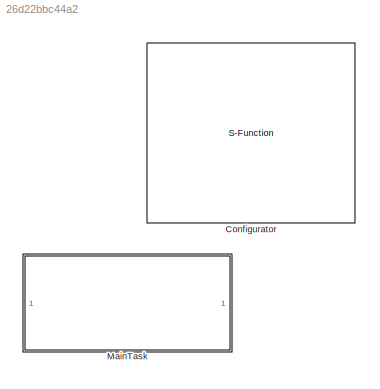
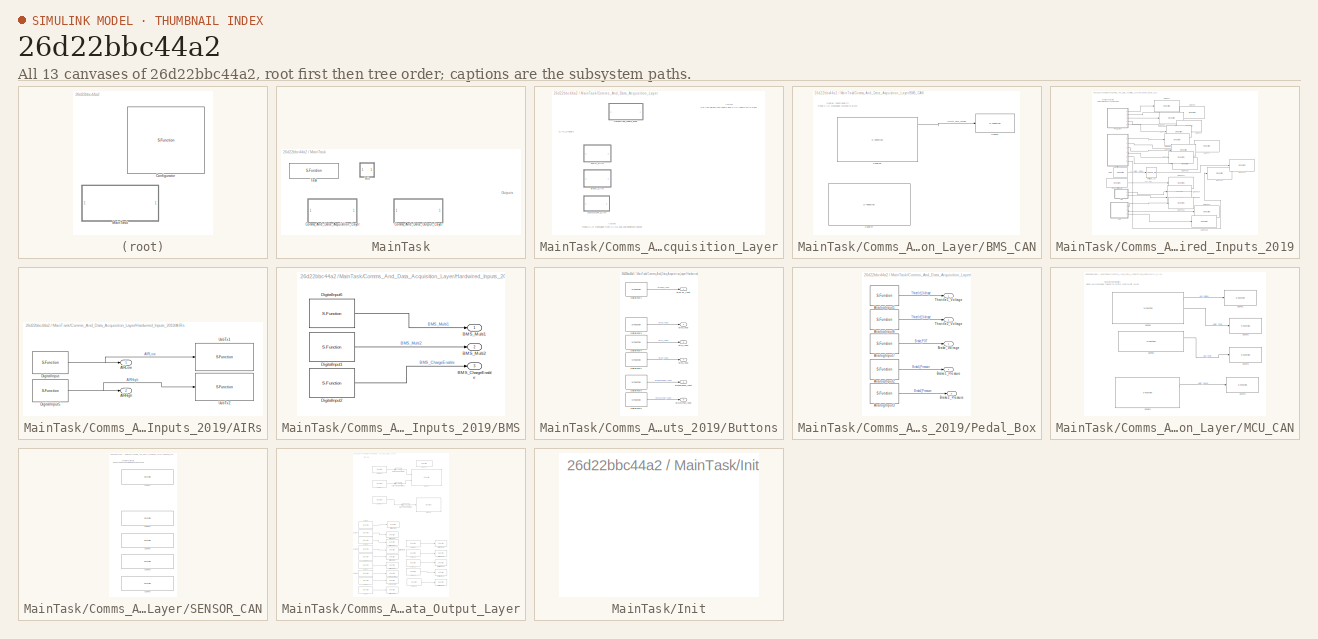
[diagram: thumbnail index - all 13 canvases of the model, root first then tree order]
MODEL slx_26d22bbc44a2
KIND model
CONFIG AbsTol = auto
CONFIG EnableMultiTasking = off
CONFIG FixedStep = 0.0001
CONFIG MaxStep = auto
CONFIG MinStep = auto
CONFIG PostLoadFcn = model_init();
CONFIG RelTol = 1e-3
CONFIG SampleTimeConstraint = Unconstrained
CONFIG Solver = FixedStepDiscrete
CONFIG SolverName = FixedStepDiscrete
CONFIG StartTime = 0.0
CONFIG StopTime = inf
BLOCK [S-Function] Configurator
  EnableBusSupport = off
  FunctionName = NsiSys_Configurator
  OpenFcn = NsiSys_Configurator_OpenFcn();
  Parameters = main,io,nbof_can,can,ccp,flash,nbof_lin,lin,tasks
  Ports = []
  SFcnIsStateOwnerBlock = off
  SFunctionDeploymentMode = off
BLOCK [SubSystem] MainTask
  OpenFcn = NsiSys_SubSystemTask_OpenFcn();
  Ports = []
  RTWFcnName = MainTask
  RTWFcnNameOpts = User specified
  RTWFileName = FileTaskFcn
  RTWFileNameOpts = Use function name
  RTWSystemCode = Nonreusable function
  RequestExecContextInheritance = off
  SystemSampleTime = [0.01]
  TreatAsAtomicUnit = on
  Variant = off
BLOCK [SubSystem] MainTask/Comms_And_Data_Acquisition_Layer
  Ports = []
  RequestExecContextInheritance = off
  Variant = off
BLOCK [SubSystem] MainTask/Comms_And_Data_Acquisition_Layer/BMS_CAN
  Ports = []
  RequestExecContextInheritance = off
  Variant = off
BLOCK [S-Function] MainTask/Comms_And_Data_Acquisition_Layer/BMS_CAN/CanRx6
  EnableBusSupport = off
  FunctionName = NsiCan_Rx_Ext
  OpenFcn = NsiCan_Rx_Ext_OpenFcn();
  Parameters = data_can,channel,msg_name,ident,ident_type,dlc,signals,is_trigger,is_physical,is_canfd,is_rxgw
  Ports = [0, 5]
  SFcnIsStateOwnerBlock = off
  SFunctionDeploymentMode = off
BLOCK [S-Function] MainTask/Comms_And_Data_Acquisition_Layer/BMS_CAN/CanRx7
  EnableBusSupport = off
  FunctionName = NsiCan_Rx_Ext
  OpenFcn = NsiCan_Rx_Ext_OpenFcn();
  Parameters = data_can,channel,msg_name,ident,ident_type,dlc,signals,is_trigger,is_physical,is_canfd,is_rxgw
  Ports = [0, 6]
  SFcnIsStateOwnerBlock = off
  SFunctionDeploymentMode = off
BLOCK [S-Function] MainTask/Comms_And_Data_Acquisition_Layer/BMS_CAN/UsbTx1
  EnableBusSupport = off
  FunctionName = NsiUsb_Tx
  OpenFcn = NsiUsb_Tx_OpenFcn();
  Parameters = signame,resolution,offset,unite
  Ports = [1]
  SFcnIsStateOwnerBlock = off
  SFunctionDeploymentMode = off
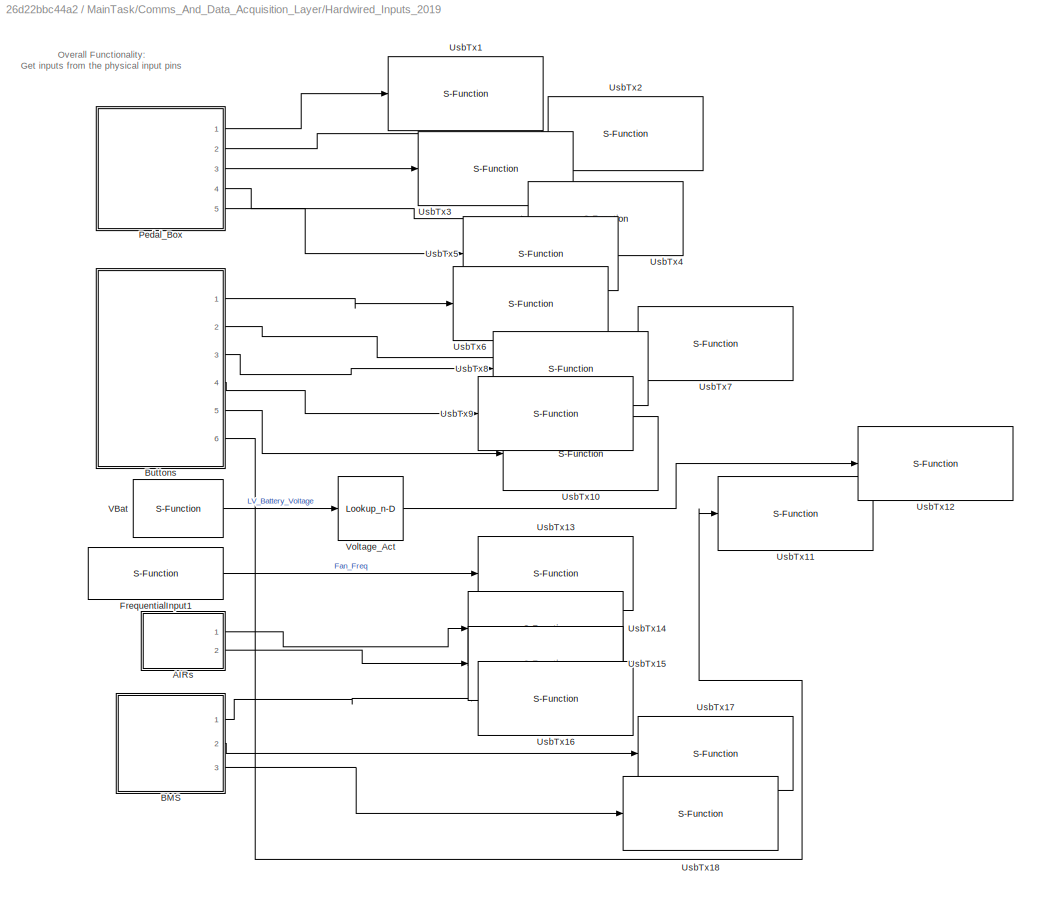
BLOCK [SubSystem] MainTask/Comms_And_Data_Acquisition_Layer/Hardwired_Inputs_2019
  Ports = []
  RequestExecContextInheritance = off
  Variant = off
BLOCK [SubSystem] MainTask/Comms_And_Data_Acquisition_Layer/Hardwired_Inputs_2019/AIRs
  Ports = [0, 2]
  RequestExecContextInheritance = off
  Variant = off
BLOCK [Outport] MainTask/Comms_And_Data_Acquisition_Layer/Hardwired_Inputs_2019/AIRs/AIRHigh
  IconDisplay = Port number
  Port = 2
BLOCK [Outport] MainTask/Comms_And_Data_Acquisition_Layer/Hardwired_Inputs_2019/AIRs/AIRLow
  IconDisplay = Port number
BLOCK [S-Function] MainTask/Comms_And_Data_Acquisition_Layer/Hardwired_Inputs_2019/AIRs/DigitalInput
  EnableBusSupport = off
  FunctionName = NsiIo_DigitalInput
  OpenFcn = NsiIo_DigitalInput_OpenFcn();
  Parameters = channel,is_trigger,typeof_trigger,is_wakeup,wakeup_level
  Ports = [0, 1]
  SFcnIsStateOwnerBlock = off
  SFunctionDeploymentMode = off
BLOCK [S-Function] MainTask/Comms_And_Data_Acquisition_Layer/Hardwired_Inputs_2019/AIRs/DigitalInput5
  EnableBusSupport = off
  FunctionName = NsiIo_DigitalInput
  OpenFcn = NsiIo_DigitalInput_OpenFcn();
  Parameters = channel,is_trigger,typeof_trigger,is_wakeup,wakeup_level
  Ports = [0, 1]
  SFcnIsStateOwnerBlock = off
  SFunctionDeploymentMode = off
BLOCK [S-Function] MainTask/Comms_And_Data_Acquisition_Layer/Hardwired_Inputs_2019/AIRs/UsbTx1
  EnableBusSupport = off
  FunctionName = NsiUsb_Tx
  OpenFcn = NsiUsb_Tx_OpenFcn();
  Parameters = signame,resolution,offset,unite
  Ports = [1]
  SFcnIsStateOwnerBlock = off
  SFunctionDeploymentMode = off
BLOCK [S-Function] MainTask/Comms_And_Data_Acquisition_Layer/Hardwired_Inputs_2019/AIRs/UsbTx2
  EnableBusSupport = off
  FunctionName = NsiUsb_Tx
  OpenFcn = NsiUsb_Tx_OpenFcn();
  Parameters = signame,resolution,offset,unite
  Ports = [1]
  SFcnIsStateOwnerBlock = off
  SFunctionDeploymentMode = off
BLOCK [SubSystem] MainTask/Comms_And_Data_Acquisition_Layer/Hardwired_Inputs_2019/BMS
  Ports = [0, 3]
  RequestExecContextInheritance = off
  Variant = off
BLOCK [Outport] MainTask/Comms_And_Data_Acquisition_Layer/Hardwired_Inputs_2019/BMS/BMS_ChargeEnable
  IconDisplay = Port number
  Port = 3
BLOCK [Outport] MainTask/Comms_And_Data_Acquisition_Layer/Hardwired_Inputs_2019/BMS/BMS_Multi1
  IconDisplay = Port number
BLOCK [Outport] MainTask/Comms_And_Data_Acquisition_Layer/Hardwired_Inputs_2019/BMS/BMS_Multi2
  IconDisplay = Port number
  Port = 2
BLOCK [S-Function] MainTask/Comms_And_Data_Acquisition_Layer/Hardwired_Inputs_2019/BMS/DigitalInput1
  EnableBusSupport = off
  FunctionName = NsiIo_DigitalInput
  OpenFcn = NsiIo_DigitalInput_OpenFcn();
  Parameters = channel,is_trigger,typeof_trigger,is_wakeup,wakeup_level
  Ports = [0, 1]
  SFcnIsStateOwnerBlock = off
  SFunctionDeploymentMode = off
BLOCK [S-Function] MainTask/Comms_And_Data_Acquisition_Layer/Hardwired_Inputs_2019/BMS/DigitalInput2
  EnableBusSupport = off
  FunctionName = NsiIo_DigitalInput
  OpenFcn = NsiIo_DigitalInput_OpenFcn();
  Parameters = channel,is_trigger,typeof_trigger,is_wakeup,wakeup_level
  Ports = [0, 1]
  SFcnIsStateOwnerBlock = off
  SFunctionDeploymentMode = off
BLOCK [S-Function] MainTask/Comms_And_Data_Acquisition_Layer/Hardwired_Inputs_2019/BMS/DigitalInput6
  EnableBusSupport = off
  FunctionName = NsiIo_DigitalInput
  OpenFcn = NsiIo_DigitalInput_OpenFcn();
  Parameters = channel,is_trigger,typeof_trigger,is_wakeup,wakeup_level
  Ports = [0, 1]
  SFcnIsStateOwnerBlock = off
  SFunctionDeploymentMode = off
BLOCK [SubSystem] MainTask/Comms_And_Data_Acquisition_Layer/Hardwired_Inputs_2019/Buttons
  Ports = [0, 6]
  RequestExecContextInheritance = off
  Variant = off
BLOCK [S-Function] MainTask/Comms_And_Data_Acquisition_Layer/Hardwired_Inputs_2019/Buttons/DigitalInput1
  EnableBusSupport = off
  FunctionName = NsiIo_DigitalInput
  OpenFcn = NsiIo_DigitalInput_OpenFcn();
  Parameters = channel,is_trigger,typeof_trigger,is_wakeup,wakeup_level
  Ports = [0, 1]
  SFcnIsStateOwnerBlock = off
  SFunctionDeploymentMode = off
BLOCK [S-Function] MainTask/Comms_And_Data_Acquisition_Layer/Hardwired_Inputs_2019/Buttons/DigitalInput2
  EnableBusSupport = off
  FunctionName = NsiIo_DigitalInput
  OpenFcn = NsiIo_DigitalInput_OpenFcn();
  Parameters = channel,is_trigger,typeof_trigger,is_wakeup,wakeup_level
  Ports = [0, 1]
  SFcnIsStateOwnerBlock = off
  SFunctionDeploymentMode = off
BLOCK [S-Function] MainTask/Comms_And_Data_Acquisition_Layer/Hardwired_Inputs_2019/Buttons/DigitalInput3
  EnableBusSupport = off
  FunctionName = NsiIo_DigitalInput
  OpenFcn = NsiIo_DigitalInput_OpenFcn();
  Parameters = channel,is_trigger,typeof_trigger,is_wakeup,wakeup_level
  Ports = [0, 1]
  SFcnIsStateOwnerBlock = off
  SFunctionDeploymentMode = off
BLOCK [S-Function] MainTask/Comms_And_Data_Acquisition_Layer/Hardwired_Inputs_2019/Buttons/DigitalInput4
  EnableBusSupport = off
  FunctionName = NsiIo_DigitalInput
  OpenFcn = NsiIo_DigitalInput_OpenFcn();
  Parameters = channel,is_trigger,typeof_trigger,is_wakeup,wakeup_level
  Ports = [0, 1]
  SFcnIsStateOwnerBlock = off
  SFunctionDeploymentMode = off
BLOCK [S-Function] MainTask/Comms_And_Data_Acquisition_Layer/Hardwired_Inputs_2019/Buttons/DigitalInput5
  EnableBusSupport = off
  FunctionName = NsiIo_DigitalInput
  OpenFcn = NsiIo_DigitalInput_OpenFcn();
  Parameters = channel,is_trigger,typeof_trigger,is_wakeup,wakeup_level
  Ports = [0, 1]
  SFcnIsStateOwnerBlock = off
  SFunctionDeploymentMode = off
BLOCK [S-Function] MainTask/Comms_And_Data_Acquisition_Layer/Hardwired_Inputs_2019/Buttons/DigitalInput6
  EnableBusSupport = off
  FunctionName = NsiIo_DigitalInput
  OpenFcn = NsiIo_DigitalInput_OpenFcn();
  Parameters = channel,is_trigger,typeof_trigger,is_wakeup,wakeup_level
  Ports = [0, 1]
  SFcnIsStateOwnerBlock = off
  SFunctionDeploymentMode = off
BLOCK [Outport] MainTask/Comms_And_Data_Acquisition_Layer/Hardwired_Inputs_2019/Buttons/btnAccyFan_Input
  IconDisplay = Port number
  Port = 6
BLOCK [Outport] MainTask/Comms_And_Data_Acquisition_Layer/Hardwired_Inputs_2019/Buttons/btnPumpFan_Input
  IconDisplay = Port number
  Port = 5
BLOCK [Outport] MainTask/Comms_And_Data_Acquisition_Layer/Hardwired_Inputs_2019/Buttons/btnRTD_Input
  IconDisplay = Port number
BLOCK [Outport] MainTask/Comms_And_Data_Acquisition_Layer/Hardwired_Inputs_2019/Buttons/btnX_Input
  IconDisplay = Port number
  Port = 2
BLOCK [Outport] MainTask/Comms_And_Data_Acquisition_Layer/Hardwired_Inputs_2019/Buttons/btnY_Input
  IconDisplay = Port number
  Port = 3
BLOCK [Outport] MainTask/Comms_And_Data_Acquisition_Layer/Hardwired_Inputs_2019/Buttons/btnZ_Input
  IconDisplay = Port number
  Port = 4
BLOCK [S-Function] MainTask/Comms_And_Data_Acquisition_Layer/Hardwired_Inputs_2019/FrequentialInput1
  EnableBusSupport = off
  FunctionName = NsiIo_FrequencyInput
  OpenFcn = NsiIo_FrequencyInput_OpenFcn();
  Parameters = channel,max_freq,is_digital_input,DutyCycle,MUXlabType
  Ports = [0, 1]
  SFcnIsStateOwnerBlock = off
  SFunctionDeploymentMode = off
BLOCK [SubSystem] MainTask/Comms_And_Data_Acquisition_Layer/Hardwired_Inputs_2019/Pedal_Box
  Ports = [0, 5]
  RequestExecContextInheritance = off
  Variant = off
BLOCK [S-Function] MainTask/Comms_And_Data_Acquisition_Layer/Hardwired_Inputs_2019/Pedal_Box/AnalogInput1
  EnableBusSupport = off
  FunctionName = NsiIo_AnalogInput
  OpenFcn = NsiIo_AnalogInput_OpenFcn();
  Parameters = channel
  Ports = [0, 1]
  SFcnIsStateOwnerBlock = off
  SFunctionDeploymentMode = off
BLOCK [S-Function] MainTask/Comms_And_Data_Acquisition_Layer/Hardwired_Inputs_2019/Pedal_Box/AnalogInput2
  EnableBusSupport = off
  FunctionName = NsiIo_AnalogInput
  OpenFcn = NsiIo_AnalogInput_OpenFcn();
  Parameters = channel
  Ports = [0, 1]
  SFcnIsStateOwnerBlock = off
  SFunctionDeploymentMode = off
BLOCK [S-Function] MainTask/Comms_And_Data_Acquisition_Layer/Hardwired_Inputs_2019/Pedal_Box/AnalogInput3
  EnableBusSupport = off
  FunctionName = NsiIo_AnalogInput
  OpenFcn = NsiIo_AnalogInput_OpenFcn();
  Parameters = channel
  Ports = [0, 1]
  SFcnIsStateOwnerBlock = off
  SFunctionDeploymentMode = off
BLOCK [S-Function] MainTask/Comms_And_Data_Acquisition_Layer/Hardwired_Inputs_2019/Pedal_Box/AnalogInput6
  EnableBusSupport = off
  FunctionName = NsiIo_AnalogInput
  OpenFcn = NsiIo_AnalogInput_OpenFcn();
  Parameters = channel
  Ports = [0, 1]
  SFcnIsStateOwnerBlock = off
  SFunctionDeploymentMode = off
BLOCK [S-Function] MainTask/Comms_And_Data_Acquisition_Layer/Hardwired_Inputs_2019/Pedal_Box/AnalogInput7
  EnableBusSupport = off
  FunctionName = NsiIo_AnalogInput
  OpenFcn = NsiIo_AnalogInput_OpenFcn();
  Parameters = channel
  Ports = [0, 1]
  SFcnIsStateOwnerBlock = off
  SFunctionDeploymentMode = off
BLOCK [Outport] MainTask/Comms_And_Data_Acquisition_Layer/Hardwired_Inputs_2019/Pedal_Box/Brake1_Pressure
  IconDisplay = Port number
  Port = 4
BLOCK [Outport] MainTask/Comms_And_Data_Acquisition_Layer/Hardwired_Inputs_2019/Pedal_Box/Brake2_Pressure
  IconDisplay = Port number
  Port = 5
BLOCK [Outport] MainTask/Comms_And_Data_Acquisition_Layer/Hardwired_Inputs_2019/Pedal_Box/Brake_Voltage
  IconDisplay = Port number
  Port = 3
BLOCK [Outport] MainTask/Comms_And_Data_Acquisition_Layer/Hardwired_Inputs_2019/Pedal_Box/Throttle1_Voltage
  IconDisplay = Port number
BLOCK [Outport] MainTask/Comms_And_Data_Acquisition_Layer/Hardwired_Inputs_2019/Pedal_Box/Throttle2_Voltage
  IconDisplay = Port number
  Port = 2
BLOCK [S-Function] MainTask/Comms_And_Data_Acquisition_Layer/Hardwired_Inputs_2019/UsbTx1
  EnableBusSupport = off
  FunctionName = NsiUsb_Tx
  OpenFcn = NsiUsb_Tx_OpenFcn();
  Parameters = signame,resolution,offset,unite
  Ports = [1]
  SFcnIsStateOwnerBlock = off
  SFunctionDeploymentMode = off
BLOCK [S-Function] MainTask/Comms_And_Data_Acquisition_Layer/Hardwired_Inputs_2019/UsbTx10
  EnableBusSupport = off
  FunctionName = NsiUsb_Tx
  OpenFcn = NsiUsb_Tx_OpenFcn();
  Parameters = signame,resolution,offset,unite
  Ports = [1]
  SFcnIsStateOwnerBlock = off
  SFunctionDeploymentMode = off
BLOCK [S-Function] MainTask/Comms_And_Data_Acquisition_Layer/Hardwired_Inputs_2019/UsbTx11
  EnableBusSupport = off
  FunctionName = NsiUsb_Tx
  OpenFcn = NsiUsb_Tx_OpenFcn();
  Parameters = signame,resolution,offset,unite
  Ports = [1]
  SFcnIsStateOwnerBlock = off
  SFunctionDeploymentMode = off
BLOCK [S-Function] MainTask/Comms_And_Data_Acquisition_Layer/Hardwired_Inputs_2019/UsbTx12
  EnableBusSupport = off
  FunctionName = NsiUsb_Tx
  OpenFcn = NsiUsb_Tx_OpenFcn();
  Parameters = signame,resolution,offset,unite
  Ports = [1]
  SFcnIsStateOwnerBlock = off
  SFunctionDeploymentMode = off
BLOCK [S-Function] MainTask/Comms_And_Data_Acquisition_Layer/Hardwired_Inputs_2019/UsbTx13
  EnableBusSupport = off
  FunctionName = NsiUsb_Tx
  OpenFcn = NsiUsb_Tx_OpenFcn();
  Parameters = signame,resolution,offset,unite
  Ports = [1]
  SFcnIsStateOwnerBlock = off
  SFunctionDeploymentMode = off
BLOCK [S-Function] MainTask/Comms_And_Data_Acquisition_Layer/Hardwired_Inputs_2019/UsbTx14
  EnableBusSupport = off
  FunctionName = NsiUsb_Tx
  OpenFcn = NsiUsb_Tx_OpenFcn();
  Parameters = signame,resolution,offset,unite
  Ports = [1]
  SFcnIsStateOwnerBlock = off
  SFunctionDeploymentMode = off
BLOCK [S-Function] MainTask/Comms_And_Data_Acquisition_Layer/Hardwired_Inputs_2019/UsbTx15
  EnableBusSupport = off
  FunctionName = NsiUsb_Tx
  OpenFcn = NsiUsb_Tx_OpenFcn();
  Parameters = signame,resolution,offset,unite
  Ports = [1]
  SFcnIsStateOwnerBlock = off
  SFunctionDeploymentMode = off
BLOCK [S-Function] MainTask/Comms_And_Data_Acquisition_Layer/Hardwired_Inputs_2019/UsbTx16
  EnableBusSupport = off
  FunctionName = NsiUsb_Tx
  OpenFcn = NsiUsb_Tx_OpenFcn();
  Parameters = signame,resolution,offset,unite
  Ports = [1]
  SFcnIsStateOwnerBlock = off
  SFunctionDeploymentMode = off
BLOCK [S-Function] MainTask/Comms_And_Data_Acquisition_Layer/Hardwired_Inputs_2019/UsbTx17
  EnableBusSupport = off
  FunctionName = NsiUsb_Tx
  OpenFcn = NsiUsb_Tx_OpenFcn();
  Parameters = signame,resolution,offset,unite
  Ports = [1]
  SFcnIsStateOwnerBlock = off
  SFunctionDeploymentMode = off
BLOCK [S-Function] MainTask/Comms_And_Data_Acquisition_Layer/Hardwired_Inputs_2019/UsbTx18
  EnableBusSupport = off
  FunctionName = NsiUsb_Tx
  OpenFcn = NsiUsb_Tx_OpenFcn();
  Parameters = signame,resolution,offset,unite
  Ports = [1]
  SFcnIsStateOwnerBlock = off
  SFunctionDeploymentMode = off
BLOCK [S-Function] MainTask/Comms_And_Data_Acquisition_Layer/Hardwired_Inputs_2019/UsbTx2
  EnableBusSupport = off
  FunctionName = NsiUsb_Tx
  OpenFcn = NsiUsb_Tx_OpenFcn();
  Parameters = signame,resolution,offset,unite
  Ports = [1]
  SFcnIsStateOwnerBlock = off
  SFunctionDeploymentMode = off
BLOCK [S-Function] MainTask/Comms_And_Data_Acquisition_Layer/Hardwired_Inputs_2019/UsbTx3
  EnableBusSupport = off
  FunctionName = NsiUsb_Tx
  OpenFcn = NsiUsb_Tx_OpenFcn();
  Parameters = signame,resolution,offset,unite
  Ports = [1]
  SFcnIsStateOwnerBlock = off
  SFunctionDeploymentMode = off
BLOCK [S-Function] MainTask/Comms_And_Data_Acquisition_Layer/Hardwired_Inputs_2019/UsbTx4
  EnableBusSupport = off
  FunctionName = NsiUsb_Tx
  OpenFcn = NsiUsb_Tx_OpenFcn();
  Parameters = signame,resolution,offset,unite
  Ports = [1]
  SFcnIsStateOwnerBlock = off
  SFunctionDeploymentMode = off
BLOCK [S-Function] MainTask/Comms_And_Data_Acquisition_Layer/Hardwired_Inputs_2019/UsbTx5
  EnableBusSupport = off
  FunctionName = NsiUsb_Tx
  OpenFcn = NsiUsb_Tx_OpenFcn();
  Parameters = signame,resolution,offset,unite
  Ports = [1]
  SFcnIsStateOwnerBlock = off
  SFunctionDeploymentMode = off
BLOCK [S-Function] MainTask/Comms_And_Data_Acquisition_Layer/Hardwired_Inputs_2019/UsbTx6
  EnableBusSupport = off
  FunctionName = NsiUsb_Tx
  OpenFcn = NsiUsb_Tx_OpenFcn();
  Parameters = signame,resolution,offset,unite
  Ports = [1]
  SFcnIsStateOwnerBlock = off
  SFunctionDeploymentMode = off
BLOCK [S-Function] MainTask/Comms_And_Data_Acquisition_Layer/Hardwired_Inputs_2019/UsbTx7
  EnableBusSupport = off
  FunctionName = NsiUsb_Tx
  OpenFcn = NsiUsb_Tx_OpenFcn();
  Parameters = signame,resolution,offset,unite
  Ports = [1]
  SFcnIsStateOwnerBlock = off
  SFunctionDeploymentMode = off
BLOCK [S-Function] MainTask/Comms_And_Data_Acquisition_Layer/Hardwired_Inputs_2019/UsbTx8
  EnableBusSupport = off
  FunctionName = NsiUsb_Tx
  OpenFcn = NsiUsb_Tx_OpenFcn();
  Parameters = signame,resolution,offset,unite
  Ports = [1]
  SFcnIsStateOwnerBlock = off
  SFunctionDeploymentMode = off
BLOCK [S-Function] MainTask/Comms_And_Data_Acquisition_Layer/Hardwired_Inputs_2019/UsbTx9
  EnableBusSupport = off
  FunctionName = NsiUsb_Tx
  OpenFcn = NsiUsb_Tx_OpenFcn();
  Parameters = signame,resolution,offset,unite
  Ports = [1]
  SFcnIsStateOwnerBlock = off
  SFunctionDeploymentMode = off
BLOCK [S-Function] MainTask/Comms_And_Data_Acquisition_Layer/Hardwired_Inputs_2019/VBat
  EnableBusSupport = off
  FunctionName = NsiIo_Vbat
  OpenFcn = NsiIo_Vbat_OpenFcn();
  Ports = [0, 1]
  SFcnIsStateOwnerBlock = off
  SFunctionDeploymentMode = off
BLOCK [Lookup_n-D] MainTask/Comms_And_Data_Acquisition_Layer/Hardwired_Inputs_2019/Voltage_Act
  BreakpointsForDimension1 = [0,20000]
  ExtrapMethod = Clip
  InternalRulePriority = Speed
  NumberOfTableDimensions = 1
  OutDataTypeStr = uint16
  Ports = [1, 1]
  RndMeth = Simplest
  Table = [500,33000]
  TableDataTypeStr = Inherit: Inherit from 'Table data'
  UseLastTableValue = on
BLOCK [SubSystem] MainTask/Comms_And_Data_Acquisition_Layer/MCU_CAN
  Ports = []
  RequestExecContextInheritance = off
  Variant = off
BLOCK [S-Function] MainTask/Comms_And_Data_Acquisition_Layer/MCU_CAN/CanRx1
  EnableBusSupport = off
  FunctionName = NsiCan_Rx_J1939_Ext
  OpenFcn = NsiCan_Rx_J1939_Ext_OpenFcn();
  Parameters = data_can,channel,msg_name,ident,ident_type,dlc,signals,is_trigger,is_SA_Masked,is_TA_Masked,is_physical,is_canfd
  Ports = [0, 3]
  SFcnIsStateOwnerBlock = off
  SFunctionDeploymentMode = off
BLOCK [S-Function] MainTask/Comms_And_Data_Acquisition_Layer/MCU_CAN/CanRx2
  EnableBusSupport = off
  FunctionName = NsiCan_Rx_J1939_Ext
  OpenFcn = NsiCan_Rx_J1939_Ext_OpenFcn();
  Parameters = data_can,channel,msg_name,ident,ident_type,dlc,signals,is_trigger,is_SA_Masked,is_TA_Masked,is_physical,is_canfd
  Ports = [0, 2]
  SFcnIsStateOwnerBlock = off
  SFunctionDeploymentMode = off
BLOCK [S-Function] MainTask/Comms_And_Data_Acquisition_Layer/MCU_CAN/CanRx3
  EnableBusSupport = off
  FunctionName = NsiCan_Rx_J1939_Ext
  OpenFcn = NsiCan_Rx_J1939_Ext_OpenFcn();
  Parameters = data_can,channel,msg_name,ident,ident_type,dlc,signals,is_trigger,is_SA_Masked,is_TA_Masked,is_physical,is_canfd
  Ports = [0, 2]
  SFcnIsStateOwnerBlock = off
  SFunctionDeploymentMode = off
BLOCK [S-Function] MainTask/Comms_And_Data_Acquisition_Layer/MCU_CAN/UsbTx1
  EnableBusSupport = off
  FunctionName = NsiUsb_Tx
  OpenFcn = NsiUsb_Tx_OpenFcn();
  Parameters = signame,resolution,offset,unite
  Ports = [1]
  SFcnIsStateOwnerBlock = off
  SFunctionDeploymentMode = off
BLOCK [S-Function] MainTask/Comms_And_Data_Acquisition_Layer/MCU_CAN/UsbTx2
  EnableBusSupport = off
  FunctionName = NsiUsb_Tx
  OpenFcn = NsiUsb_Tx_OpenFcn();
  Parameters = signame,resolution,offset,unite
  Ports = [1]
  SFcnIsStateOwnerBlock = off
  SFunctionDeploymentMode = off
BLOCK [S-Function] MainTask/Comms_And_Data_Acquisition_Layer/MCU_CAN/UsbTx3
  EnableBusSupport = off
  FunctionName = NsiUsb_Tx
  OpenFcn = NsiUsb_Tx_OpenFcn();
  Parameters = signame,resolution,offset,unite
  Ports = [1]
  SFcnIsStateOwnerBlock = off
  SFunctionDeploymentMode = off
BLOCK [S-Function] MainTask/Comms_And_Data_Acquisition_Layer/MCU_CAN/UsbTx4
  EnableBusSupport = off
  FunctionName = NsiUsb_Tx
  OpenFcn = NsiUsb_Tx_OpenFcn();
  Parameters = signame,resolution,offset,unite
  Ports = [1]
  SFcnIsStateOwnerBlock = off
  SFunctionDeploymentMode = off
BLOCK [SubSystem] MainTask/Comms_And_Data_Acquisition_Layer/SENSOR_CAN
  Ports = []
  RequestExecContextInheritance = off
  Variant = off
BLOCK [S-Function] MainTask/Comms_And_Data_Acquisition_Layer/SENSOR_CAN/CanRx1
  EnableBusSupport = off
  FunctionName = NsiCan_Rx_Ext
  OpenFcn = NsiCan_Rx_Ext_OpenFcn();
  Parameters = data_can,channel,msg_name,ident,ident_type,dlc,signals,is_trigger,is_physical,is_canfd,is_rxgw
  Ports = [0, 4]
  SFcnIsStateOwnerBlock = off
  SFunctionDeploymentMode = off
BLOCK [S-Function] MainTask/Comms_And_Data_Acquisition_Layer/SENSOR_CAN/CanRx2
  EnableBusSupport = off
  FunctionName = NsiCan_Rx_Ext
  OpenFcn = NsiCan_Rx_Ext_OpenFcn();
  Parameters = data_can,channel,msg_name,ident,ident_type,dlc,signals,is_trigger,is_physical,is_canfd,is_rxgw
  Ports = [0, 4]
  SFcnIsStateOwnerBlock = off
  SFunctionDeploymentMode = off
BLOCK [S-Function] MainTask/Comms_And_Data_Acquisition_Layer/SENSOR_CAN/CanRx5
  EnableBusSupport = off
  FunctionName = NsiCan_Rx_Ext
  OpenFcn = NsiCan_Rx_Ext_OpenFcn();
  Parameters = data_can,channel,msg_name,ident,ident_type,dlc,signals,is_trigger,is_physical,is_canfd,is_rxgw
  Ports = [0, 2]
  SFcnIsStateOwnerBlock = off
  SFunctionDeploymentMode = off
BLOCK [S-Function] MainTask/Comms_And_Data_Acquisition_Layer/SENSOR_CAN/CanRx8
  EnableBusSupport = off
  FunctionName = NsiCan_Rx_Ext
  OpenFcn = NsiCan_Rx_Ext_OpenFcn();
  Parameters = data_can,channel,msg_name,ident,ident_type,dlc,signals,is_trigger,is_physical,is_canfd,is_rxgw
  Ports = [0, 2]
  SFcnIsStateOwnerBlock = off
  SFunctionDeploymentMode = off
BLOCK [S-Function] MainTask/Comms_And_Data_Acquisition_Layer/SENSOR_CAN/CanRx9
  EnableBusSupport = off
  FunctionName = NsiCan_Rx_Ext
  OpenFcn = NsiCan_Rx_Ext_OpenFcn();
  Parameters = data_can,channel,msg_name,ident,ident_type,dlc,signals,is_trigger,is_physical,is_canfd,is_rxgw
  Ports = [0, 2]
  SFcnIsStateOwnerBlock = off
  SFunctionDeploymentMode = off
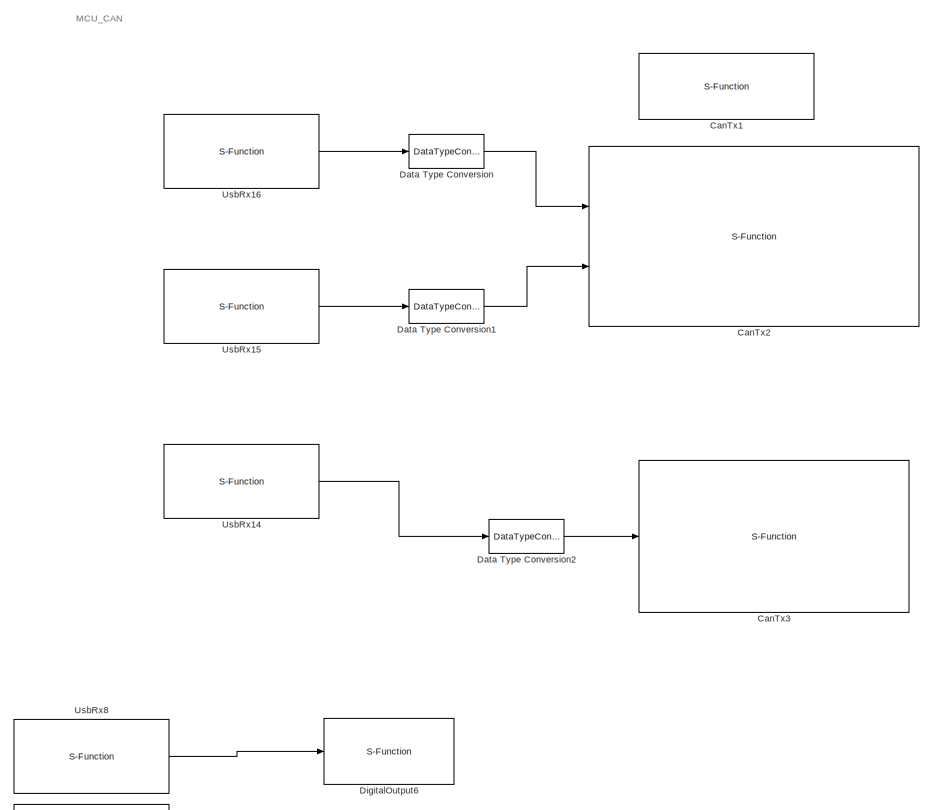
[diagram: MainTask/Comms_And_Data_Output_Layer - part 1/2, full width, top band]
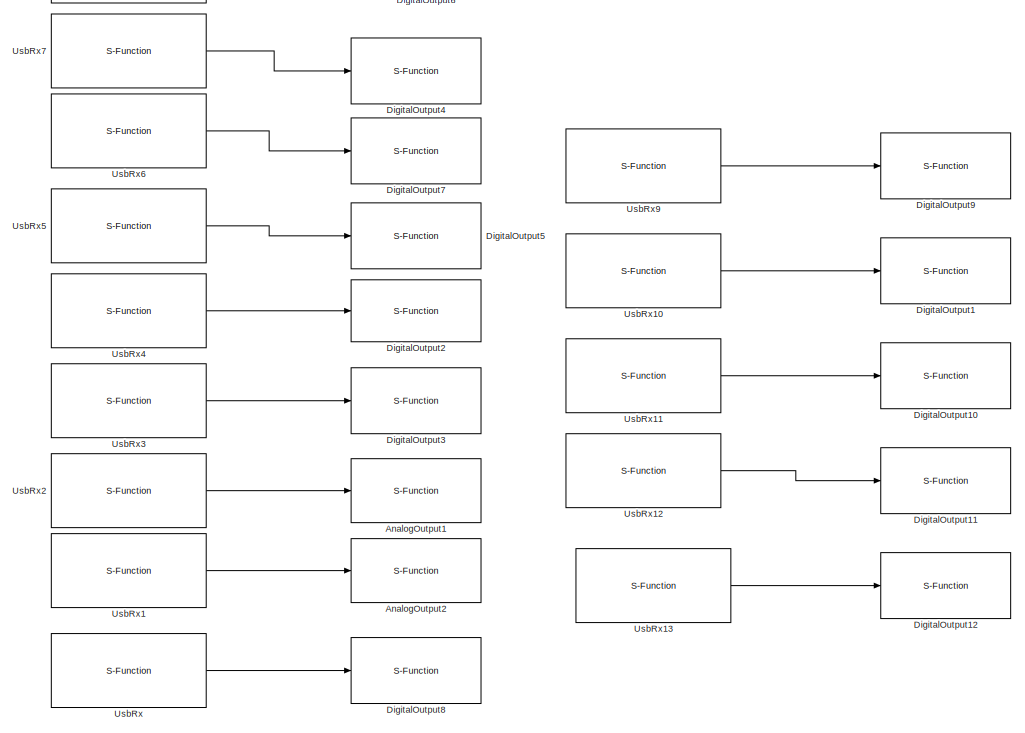
[diagram: MainTask/Comms_And_Data_Output_Layer - part 2/2, full width, bottom band]
BLOCK [SubSystem] MainTask/Comms_And_Data_Output_Layer
  Ports = []
  RequestExecContextInheritance = off
  Variant = off
BLOCK [S-Function] MainTask/Comms_And_Data_Output_Layer/AnalogOutput1
  Description = This block interface the 8 Analog Outputs. The analog outputs are 0/20V. Voltage input is set in mV
  EnableBusSupport = off
  FunctionName = NsiIo_AnalogOutput
  OpenFcn = NsiIo_AnalogOutput_OpenFcn();
  Parameters = Channel,Feedback
  Ports = [1]
  SFcnIsStateOwnerBlock = off
  SFunctionDeploymentMode = off
BLOCK [S-Function] MainTask/Comms_And_Data_Output_Layer/AnalogOutput2
  Description = This block interface the 8 Analog Outputs. The analog outputs are 0/20V. Voltage input is set in mV
  EnableBusSupport = off
  FunctionName = NsiIo_AnalogOutput
  OpenFcn = NsiIo_AnalogOutput_OpenFcn();
  Parameters = Channel,Feedback
  Ports = [1]
  SFcnIsStateOwnerBlock = off
  SFunctionDeploymentMode = off
BLOCK [S-Function] MainTask/Comms_And_Data_Output_Layer/CanTx1
  EnableBusSupport = off
  FunctionName = NsiCan_Tx_Ext
  OpenFcn = NsiCan_Tx_Ext_OpenFcn();
  Parameters = data_can,channel,msg_name,ident,ident_type,dlc,signals,is_physical,is_canfd,is_crc
  Ports = []
  SFcnIsStateOwnerBlock = off
  SFunctionDeploymentMode = off
BLOCK [S-Function] MainTask/Comms_And_Data_Output_Layer/CanTx2
  EnableBusSupport = off
  FunctionName = NsiCan_Tx_J1939_Ext
  OpenFcn = NsiCan_Tx_J1939_Ext_OpenFcn();
  Parameters = data_can,channel,msg_name,ident,ident_type,dlc,signals,is_SA_Masked,is_physical,is_canfd
  Ports = [2]
  SFcnIsStateOwnerBlock = off
  SFunctionDeploymentMode = off
BLOCK [S-Function] MainTask/Comms_And_Data_Output_Layer/CanTx3
  EnableBusSupport = off
  FunctionName = NsiCan_Tx_Ext
  OpenFcn = NsiCan_Tx_Ext_OpenFcn();
  Parameters = data_can,channel,msg_name,ident,ident_type,dlc,signals,is_physical,is_canfd,is_crc
  Ports = [1]
  SFcnIsStateOwnerBlock = off
  SFunctionDeploymentMode = off
BLOCK [DataTypeConversion] MainTask/Comms_And_Data_Output_Layer/Data Type Conversion
  RndMeth = Floor
  SaturateOnIntegerOverflow = off
BLOCK [DataTypeConversion] MainTask/Comms_And_Data_Output_Layer/Data Type Conversion1
  RndMeth = Floor
  SaturateOnIntegerOverflow = off
BLOCK [DataTypeConversion] MainTask/Comms_And_Data_Output_Layer/Data Type Conversion2
  RndMeth = Floor
  SaturateOnIntegerOverflow = off
BLOCK [S-Function] MainTask/Comms_And_Data_Output_Layer/DigitalOutput1
  EnableBusSupport = off
  FunctionName = NsiIo_DigitalOutput
  OpenFcn = NsiIo_DigitalOutput_OpenFcn();
  Parameters = channel,side,feedback
  Ports = [1]
  SFcnIsStateOwnerBlock = off
  SFunctionDeploymentMode = off
BLOCK [S-Function] MainTask/Comms_And_Data_Output_Layer/DigitalOutput10
  EnableBusSupport = off
  FunctionName = NsiIo_DigitalOutput
  OpenFcn = NsiIo_DigitalOutput_OpenFcn();
  Parameters = channel,side,feedback
  Ports = [1]
  SFcnIsStateOwnerBlock = off
  SFunctionDeploymentMode = off
BLOCK [S-Function] MainTask/Comms_And_Data_Output_Layer/DigitalOutput11
  EnableBusSupport = off
  FunctionName = NsiIo_DigitalOutput
  OpenFcn = NsiIo_DigitalOutput_OpenFcn();
  Parameters = channel,side,feedback
  Ports = [1]
  SFcnIsStateOwnerBlock = off
  SFunctionDeploymentMode = off
BLOCK [S-Function] MainTask/Comms_And_Data_Output_Layer/DigitalOutput12
  EnableBusSupport = off
  FunctionName = NsiIo_DigitalOutput
  OpenFcn = NsiIo_DigitalOutput_OpenFcn();
  Parameters = channel,side,feedback
  Ports = [1]
  SFcnIsStateOwnerBlock = off
  SFunctionDeploymentMode = off
BLOCK [S-Function] MainTask/Comms_And_Data_Output_Layer/DigitalOutput2
  EnableBusSupport = off
  FunctionName = NsiIo_DigitalOutput
  OpenFcn = NsiIo_DigitalOutput_OpenFcn();
  Parameters = channel,side,feedback
  Ports = [1]
  SFcnIsStateOwnerBlock = off
  SFunctionDeploymentMode = off
BLOCK [S-Function] MainTask/Comms_And_Data_Output_Layer/DigitalOutput3
  EnableBusSupport = off
  FunctionName = NsiIo_DigitalOutput
  OpenFcn = NsiIo_DigitalOutput_OpenFcn();
  Parameters = channel,side,feedback
  Ports = [1]
  SFcnIsStateOwnerBlock = off
  SFunctionDeploymentMode = off
BLOCK [S-Function] MainTask/Comms_And_Data_Output_Layer/DigitalOutput4
  EnableBusSupport = off
  FunctionName = NsiIo_DigitalOutput
  OpenFcn = NsiIo_DigitalOutput_OpenFcn();
  Parameters = channel,side,feedback
  Ports = [1]
  SFcnIsStateOwnerBlock = off
  SFunctionDeploymentMode = off
BLOCK [S-Function] MainTask/Comms_And_Data_Output_Layer/DigitalOutput5
  EnableBusSupport = off
  FunctionName = NsiIo_DigitalOutput
  OpenFcn = NsiIo_DigitalOutput_OpenFcn();
  Parameters = channel,side,feedback
  Ports = [1]
  SFcnIsStateOwnerBlock = off
  SFunctionDeploymentMode = off
BLOCK [S-Function] MainTask/Comms_And_Data_Output_Layer/DigitalOutput6
  EnableBusSupport = off
  FunctionName = NsiIo_DigitalOutput
  OpenFcn = NsiIo_DigitalOutput_OpenFcn();
  Parameters = channel,side,feedback
  Ports = [1]
  SFcnIsStateOwnerBlock = off
  SFunctionDeploymentMode = off
BLOCK [S-Function] MainTask/Comms_And_Data_Output_Layer/DigitalOutput7
  EnableBusSupport = off
  FunctionName = NsiIo_DigitalOutput
  OpenFcn = NsiIo_DigitalOutput_OpenFcn();
  Parameters = channel,side,feedback
  Ports = [1]
  SFcnIsStateOwnerBlock = off
  SFunctionDeploymentMode = off
BLOCK [S-Function] MainTask/Comms_And_Data_Output_Layer/DigitalOutput8
  EnableBusSupport = off
  FunctionName = NsiIo_DigitalOutput
  OpenFcn = NsiIo_DigitalOutput_OpenFcn();
  Parameters = channel,side,feedback
  Ports = [1]
  SFcnIsStateOwnerBlock = off
  SFunctionDeploymentMode = off
BLOCK [S-Function] MainTask/Comms_And_Data_Output_Layer/DigitalOutput9
  EnableBusSupport = off
  FunctionName = NsiIo_DigitalOutput
  OpenFcn = NsiIo_DigitalOutput_OpenFcn();
  Parameters = channel,side,feedback
  Ports = [1]
  SFcnIsStateOwnerBlock = off
  SFunctionDeploymentMode = off
BLOCK [S-Function] MainTask/Comms_And_Data_Output_Layer/UsbRx
  EnableBusSupport = off
  FunctionName = NsiUsb_Rx
  OpenFcn = NsiUsb_Rx_OpenFcn();
  Parameters = signame,sigtype,resolution,offset,unite,value,is_trigger
  Ports = [0, 1]
  SFcnIsStateOwnerBlock = off
  SFunctionDeploymentMode = off
BLOCK [S-Function] MainTask/Comms_And_Data_Output_Layer/UsbRx1
  EnableBusSupport = off
  FunctionName = NsiUsb_Rx
  OpenFcn = NsiUsb_Rx_OpenFcn();
  Parameters = signame,sigtype,resolution,offset,unite,value,is_trigger
  Ports = [0, 1]
  SFcnIsStateOwnerBlock = off
  SFunctionDeploymentMode = off
BLOCK [S-Function] MainTask/Comms_And_Data_Output_Layer/UsbRx10
  EnableBusSupport = off
  FunctionName = NsiUsb_Rx
  OpenFcn = NsiUsb_Rx_OpenFcn();
  Parameters = signame,sigtype,resolution,offset,unite,value,is_trigger
  Ports = [0, 1]
  SFcnIsStateOwnerBlock = off
  SFunctionDeploymentMode = off
BLOCK [S-Function] MainTask/Comms_And_Data_Output_Layer/UsbRx11
  EnableBusSupport = off
  FunctionName = NsiUsb_Rx
  OpenFcn = NsiUsb_Rx_OpenFcn();
  Parameters = signame,sigtype,resolution,offset,unite,value,is_trigger
  Ports = [0, 1]
  SFcnIsStateOwnerBlock = off
  SFunctionDeploymentMode = off
BLOCK [S-Function] MainTask/Comms_And_Data_Output_Layer/UsbRx12
  EnableBusSupport = off
  FunctionName = NsiUsb_Rx
  OpenFcn = NsiUsb_Rx_OpenFcn();
  Parameters = signame,sigtype,resolution,offset,unite,value,is_trigger
  Ports = [0, 1]
  SFcnIsStateOwnerBlock = off
  SFunctionDeploymentMode = off
BLOCK [S-Function] MainTask/Comms_And_Data_Output_Layer/UsbRx13
  EnableBusSupport = off
  FunctionName = NsiUsb_Rx
  OpenFcn = NsiUsb_Rx_OpenFcn();
  Parameters = signame,sigtype,resolution,offset,unite,value,is_trigger
  Ports = [0, 1]
  SFcnIsStateOwnerBlock = off
  SFunctionDeploymentMode = off
BLOCK [S-Function] MainTask/Comms_And_Data_Output_Layer/UsbRx14
  EnableBusSupport = off
  FunctionName = NsiUsb_Rx
  OpenFcn = NsiUsb_Rx_OpenFcn();
  Parameters = signame,sigtype,resolution,offset,unite,value,is_trigger
  Ports = [0, 1]
  SFcnIsStateOwnerBlock = off
  SFunctionDeploymentMode = off
BLOCK [S-Function] MainTask/Comms_And_Data_Output_Layer/UsbRx15
  EnableBusSupport = off
  FunctionName = NsiUsb_Rx
  OpenFcn = NsiUsb_Rx_OpenFcn();
  Parameters = signame,sigtype,resolution,offset,unite,value,is_trigger
  Ports = [0, 1]
  SFcnIsStateOwnerBlock = off
  SFunctionDeploymentMode = off
BLOCK [S-Function] MainTask/Comms_And_Data_Output_Layer/UsbRx16
  EnableBusSupport = off
  FunctionName = NsiUsb_Rx
  OpenFcn = NsiUsb_Rx_OpenFcn();
  Parameters = signame,sigtype,resolution,offset,unite,value,is_trigger
  Ports = [0, 1]
  SFcnIsStateOwnerBlock = off
  SFunctionDeploymentMode = off
BLOCK [S-Function] MainTask/Comms_And_Data_Output_Layer/UsbRx2
  EnableBusSupport = off
  FunctionName = NsiUsb_Rx
  OpenFcn = NsiUsb_Rx_OpenFcn();
  Parameters = signame,sigtype,resolution,offset,unite,value,is_trigger
  Ports = [0, 1]
  SFcnIsStateOwnerBlock = off
  SFunctionDeploymentMode = off
BLOCK [S-Function] MainTask/Comms_And_Data_Output_Layer/UsbRx3
  EnableBusSupport = off
  FunctionName = NsiUsb_Rx
  OpenFcn = NsiUsb_Rx_OpenFcn();
  Parameters = signame,sigtype,resolution,offset,unite,value,is_trigger
  Ports = [0, 1]
  SFcnIsStateOwnerBlock = off
  SFunctionDeploymentMode = off
BLOCK [S-Function] MainTask/Comms_And_Data_Output_Layer/UsbRx4
  EnableBusSupport = off
  FunctionName = NsiUsb_Rx
  OpenFcn = NsiUsb_Rx_OpenFcn();
  Parameters = signame,sigtype,resolution,offset,unite,value,is_trigger
  Ports = [0, 1]
  SFcnIsStateOwnerBlock = off
  SFunctionDeploymentMode = off
BLOCK [S-Function] MainTask/Comms_And_Data_Output_Layer/UsbRx5
  EnableBusSupport = off
  FunctionName = NsiUsb_Rx
  OpenFcn = NsiUsb_Rx_OpenFcn();
  Parameters = signame,sigtype,resolution,offset,unite,value,is_trigger
  Ports = [0, 1]
  SFcnIsStateOwnerBlock = off
  SFunctionDeploymentMode = off
BLOCK [S-Function] MainTask/Comms_And_Data_Output_Layer/UsbRx6
  EnableBusSupport = off
  FunctionName = NsiUsb_Rx
  OpenFcn = NsiUsb_Rx_OpenFcn();
  Parameters = signame,sigtype,resolution,offset,unite,value,is_trigger
  Ports = [0, 1]
  SFcnIsStateOwnerBlock = off
  SFunctionDeploymentMode = off
BLOCK [S-Function] MainTask/Comms_And_Data_Output_Layer/UsbRx7
  EnableBusSupport = off
  FunctionName = NsiUsb_Rx
  OpenFcn = NsiUsb_Rx_OpenFcn();
  Parameters = signame,sigtype,resolution,offset,unite,value,is_trigger
  Ports = [0, 1]
  SFcnIsStateOwnerBlock = off
  SFunctionDeploymentMode = off
BLOCK [S-Function] MainTask/Comms_And_Data_Output_Layer/UsbRx8
  EnableBusSupport = off
  FunctionName = NsiUsb_Rx
  OpenFcn = NsiUsb_Rx_OpenFcn();
  Parameters = signame,sigtype,resolution,offset,unite,value,is_trigger
  Ports = [0, 1]
  SFcnIsStateOwnerBlock = off
  SFunctionDeploymentMode = off
BLOCK [S-Function] MainTask/Comms_And_Data_Output_Layer/UsbRx9
  EnableBusSupport = off
  FunctionName = NsiUsb_Rx
  OpenFcn = NsiUsb_Rx_OpenFcn();
  Parameters = signame,sigtype,resolution,offset,unite,value,is_trigger
  Ports = [0, 1]
  SFcnIsStateOwnerBlock = off
  SFunctionDeploymentMode = off
BLOCK [SubSystem] MainTask/Init
  CopyFcn = cccopyfcn(gcb)
  OpenFcn = ccopenfcn('System Initialize Function')
  Ports = []
  RequestExecContextInheritance = off
  Variant = off
BLOCK [S-Function] MainTask/Task
  EnableBusSupport = off
  FunctionName = NsiSys_TaskREF
  OpenFcn = NsiSys_Task_OpenFcn();
  Parameters = task_initialised,task_periodic, task_sampletime,task_name,task_event,task_offset
  Ports = []
  SFcnIsStateOwnerBlock = off
  SFunctionDeploymentMode = off
ANNOTATION MainTask: Outputs
ANNOTATION MainTask/Comms_And_Data_Acquisition_Layer: Action: Put the hardwired inputs and CAN inputs on to a bus
ANNOTATION MainTask/Comms_And_Data_Acquisition_Layer: Action: Read CAN messages from CAN1 bus and generate output
ANNOTATION MainTask/Comms_And_Data_Acquisition_Layer: CAN_Signals
ANNOTATION MainTask/Comms_And_Data_Acquisition_Layer/BMS_CAN: Overall Functionality: Read CAN messages related to BMS
ANNOTATION MainTask/Comms_And_Data_Acquisition_Layer/Hardwired_Inputs_2019: Overall Functionality: Get inputs from the physical input pins
ANNOTATION MainTask/Comms_And_Data_Acquisition_Layer/MCU_CAN: Overall Functionality: Read CAN messages related to motor control unit (MCU)
ANNOTATION MainTask/Comms_And_Data_Acquisition_Layer/SENSOR_CAN: Overall Functionality: Read CAN messages related to vehicle sensors
ANNOTATION MainTask/Comms_And_Data_Output_Layer: MCU_CAN
LINE MainTask/Comms_And_Data_Acquisition_Layer/BMS_CAN/CanRx6:1 -> MainTask/Comms_And_Data_Acquisition_Layer/BMS_CAN/UsbTx1:1
NET MainTask/Comms_And_Data_Acquisition_Layer/Hardwired_Inputs_2019/AIRs/DigitalInput5:1 -> MainTask/Comms_And_Data_Acquisition_Layer/Hardwired_Inputs_2019/AIRs/AIRHigh:1, MainTask/Comms_And_Data_Acquisition_Layer/Hardwired_Inputs_2019/AIRs/UsbTx2:1
NET MainTask/Comms_And_Data_Acquisition_Layer/Hardwired_Inputs_2019/AIRs/DigitalInput:1 -> MainTask/Comms_And_Data_Acquisition_Layer/Hardwired_Inputs_2019/AIRs/AIRLow:1, MainTask/Comms_And_Data_Acquisition_Layer/Hardwired_Inputs_2019/AIRs/UsbTx1:1
LINE MainTask/Comms_And_Data_Acquisition_Layer/Hardwired_Inputs_2019/AIRs:1 -> MainTask/Comms_And_Data_Acquisition_Layer/Hardwired_Inputs_2019/UsbTx14:1
LINE MainTask/Comms_And_Data_Acquisition_Layer/Hardwired_Inputs_2019/AIRs:2 -> MainTask/Comms_And_Data_Acquisition_Layer/Hardwired_Inputs_2019/UsbTx15:1
LINE MainTask/Comms_And_Data_Acquisition_Layer/Hardwired_Inputs_2019/BMS/DigitalInput1:1 -> MainTask/Comms_And_Data_Acquisition_Layer/Hardwired_Inputs_2019/BMS/BMS_Multi2:1
LINE MainTask/Comms_And_Data_Acquisition_Layer/Hardwired_Inputs_2019/BMS/DigitalInput2:1 -> MainTask/Comms_And_Data_Acquisition_Layer/Hardwired_Inputs_2019/BMS/BMS_ChargeEnable:1
LINE MainTask/Comms_And_Data_Acquisition_Layer/Hardwired_Inputs_2019/BMS/DigitalInput6:1 -> MainTask/Comms_And_Data_Acquisition_Layer/Hardwired_Inputs_2019/BMS/BMS_Multi1:1
LINE MainTask/Comms_And_Data_Acquisition_Layer/Hardwired_Inputs_2019/BMS:1 -> MainTask/Comms_And_Data_Acquisition_Layer/Hardwired_Inputs_2019/UsbTx16:1
LINE MainTask/Comms_And_Data_Acquisition_Layer/Hardwired_Inputs_2019/BMS:2 -> MainTask/Comms_And_Data_Acquisition_Layer/Hardwired_Inputs_2019/UsbTx17:1
LINE MainTask/Comms_And_Data_Acquisition_Layer/Hardwired_Inputs_2019/BMS:3 -> MainTask/Comms_And_Data_Acquisition_Layer/Hardwired_Inputs_2019/UsbTx18:1
LINE MainTask/Comms_And_Data_Acquisition_Layer/Hardwired_Inputs_2019/Buttons/DigitalInput1:1 -> MainTask/Comms_And_Data_Acquisition_Layer/Hardwired_Inputs_2019/Buttons/btnRTD_Input:1
LINE MainTask/Comms_And_Data_Acquisition_Layer/Hardwired_Inputs_2019/Buttons/DigitalInput2:1 -> MainTask/Comms_And_Data_Acquisition_Layer/Hardwired_Inputs_2019/Buttons/btnZ_Input:1
LINE MainTask/Comms_And_Data_Acquisition_Layer/Hardwired_Inputs_2019/Buttons/DigitalInput3:1 -> MainTask/Comms_And_Data_Acquisition_Layer/Hardwired_Inputs_2019/Buttons/btnX_Input:1
LINE MainTask/Comms_And_Data_Acquisition_Layer/Hardwired_Inputs_2019/Buttons/DigitalInput4:1 -> MainTask/Comms_And_Data_Acquisition_Layer/Hardwired_Inputs_2019/Buttons/btnY_Input:1
LINE MainTask/Comms_And_Data_Acquisition_Layer/Hardwired_Inputs_2019/Buttons/DigitalInput5:1 -> MainTask/Comms_And_Data_Acquisition_Layer/Hardwired_Inputs_2019/Buttons/btnPumpFan_Input:1
LINE MainTask/Comms_And_Data_Acquisition_Layer/Hardwired_Inputs_2019/Buttons/DigitalInput6:1 -> MainTask/Comms_And_Data_Acquisition_Layer/Hardwired_Inputs_2019/Buttons/btnAccyFan_Input:1
LINE MainTask/Comms_And_Data_Acquisition_Layer/Hardwired_Inputs_2019/Buttons:1 -> MainTask/Comms_And_Data_Acquisition_Layer/Hardwired_Inputs_2019/UsbTx6:1
LINE MainTask/Comms_And_Data_Acquisition_Layer/Hardwired_Inputs_2019/Buttons:2 -> MainTask/Comms_And_Data_Acquisition_Layer/Hardwired_Inputs_2019/UsbTx7:1
LINE MainTask/Comms_And_Data_Acquisition_Layer/Hardwired_Inputs_2019/Buttons:3 -> MainTask/Comms_And_Data_Acquisition_Layer/Hardwired_Inputs_2019/UsbTx8:1
LINE MainTask/Comms_And_Data_Acquisition_Layer/Hardwired_Inputs_2019/Buttons:4 -> MainTask/Comms_And_Data_Acquisition_Layer/Hardwired_Inputs_2019/UsbTx9:1
LINE MainTask/Comms_And_Data_Acquisition_Layer/Hardwired_Inputs_2019/Buttons:5 -> MainTask/Comms_And_Data_Acquisition_Layer/Hardwired_Inputs_2019/UsbTx10:1
LINE MainTask/Comms_And_Data_Acquisition_Layer/Hardwired_Inputs_2019/Buttons:6 -> MainTask/Comms_And_Data_Acquisition_Layer/Hardwired_Inputs_2019/UsbTx11:1
LINE MainTask/Comms_And_Data_Acquisition_Layer/Hardwired_Inputs_2019/FrequentialInput1:1 -> MainTask/Comms_And_Data_Acquisition_Layer/Hardwired_Inputs_2019/UsbTx13:1
LINE MainTask/Comms_And_Data_Acquisition_Layer/Hardwired_Inputs_2019/Pedal_Box/AnalogInput1:1 -> MainTask/Comms_And_Data_Acquisition_Layer/Hardwired_Inputs_2019/Pedal_Box/Throttle1_Voltage:1
LINE MainTask/Comms_And_Data_Acquisition_Layer/Hardwired_Inputs_2019/Pedal_Box/AnalogInput2:1 -> MainTask/Comms_And_Data_Acquisition_Layer/Hardwired_Inputs_2019/Pedal_Box/Brake1_Pressure:1
LINE MainTask/Comms_And_Data_Acquisition_Layer/Hardwired_Inputs_2019/Pedal_Box/AnalogInput3:1 -> MainTask/Comms_And_Data_Acquisition_Layer/Hardwired_Inputs_2019/Pedal_Box/Brake2_Pressure:1
LINE MainTask/Comms_And_Data_Acquisition_Layer/Hardwired_Inputs_2019/Pedal_Box/AnalogInput6:1 -> MainTask/Comms_And_Data_Acquisition_Layer/Hardwired_Inputs_2019/Pedal_Box/Throttle2_Voltage:1
LINE MainTask/Comms_And_Data_Acquisition_Layer/Hardwired_Inputs_2019/Pedal_Box/AnalogInput7:1 -> MainTask/Comms_And_Data_Acquisition_Layer/Hardwired_Inputs_2019/Pedal_Box/Brake_Voltage:1
LINE MainTask/Comms_And_Data_Acquisition_Layer/Hardwired_Inputs_2019/Pedal_Box:1 -> MainTask/Comms_And_Data_Acquisition_Layer/Hardwired_Inputs_2019/UsbTx1:1
LINE MainTask/Comms_And_Data_Acquisition_Layer/Hardwired_Inputs_2019/Pedal_Box:2 -> MainTask/Comms_And_Data_Acquisition_Layer/Hardwired_Inputs_2019/UsbTx2:1
LINE MainTask/Comms_And_Data_Acquisition_Layer/Hardwired_Inputs_2019/Pedal_Box:3 -> MainTask/Comms_And_Data_Acquisition_Layer/Hardwired_Inputs_2019/UsbTx3:1
LINE MainTask/Comms_And_Data_Acquisition_Layer/Hardwired_Inputs_2019/Pedal_Box:4 -> MainTask/Comms_And_Data_Acquisition_Layer/Hardwired_Inputs_2019/UsbTx4:1
LINE MainTask/Comms_And_Data_Acquisition_Layer/Hardwired_Inputs_2019/Pedal_Box:5 -> MainTask/Comms_And_Data_Acquisition_Layer/Hardwired_Inputs_2019/UsbTx5:1
LINE MainTask/Comms_And_Data_Acquisition_Layer/Hardwired_Inputs_2019/VBat:1 -> MainTask/Comms_And_Data_Acquisition_Layer/Hardwired_Inputs_2019/Voltage_Act:1
LINE MainTask/Comms_And_Data_Acquisition_Layer/Hardwired_Inputs_2019/Voltage_Act:1 -> MainTask/Comms_And_Data_Acquisition_Layer/Hardwired_Inputs_2019/UsbTx12:1
LINE MainTask/Comms_And_Data_Acquisition_Layer/MCU_CAN/CanRx1:1 -> MainTask/Comms_And_Data_Acquisition_Layer/MCU_CAN/UsbTx1:1
LINE MainTask/Comms_And_Data_Acquisition_Layer/MCU_CAN/CanRx1:2 -> MainTask/Comms_And_Data_Acquisition_Layer/MCU_CAN/UsbTx2:1
LINE MainTask/Comms_And_Data_Acquisition_Layer/MCU_CAN/CanRx2:1 -> MainTask/Comms_And_Data_Acquisition_Layer/MCU_CAN/UsbTx3:1
LINE MainTask/Comms_And_Data_Acquisition_Layer/MCU_CAN/CanRx3:1 -> MainTask/Comms_And_Data_Acquisition_Layer/MCU_CAN/UsbTx4:1
LINE MainTask/Comms_And_Data_Output_Layer/Data Type Conversion1:1 -> MainTask/Comms_And_Data_Output_Layer/CanTx2:2
LINE MainTask/Comms_And_Data_Output_Layer/Data Type Conversion2:1 -> MainTask/Comms_And_Data_Output_Layer/CanTx3:1
LINE MainTask/Comms_And_Data_Output_Layer/Data Type Conversion:1 -> MainTask/Comms_And_Data_Output_Layer/CanTx2:1
LINE MainTask/Comms_And_Data_Output_Layer/UsbRx10:1 -> MainTask/Comms_And_Data_Output_Layer/DigitalOutput1:1
LINE MainTask/Comms_And_Data_Output_Layer/UsbRx11:1 -> MainTask/Comms_And_Data_Output_Layer/DigitalOutput10:1
LINE MainTask/Comms_And_Data_Output_Layer/UsbRx12:1 -> MainTask/Comms_And_Data_Output_Layer/DigitalOutput11:1
LINE MainTask/Comms_And_Data_Output_Layer/UsbRx13:1 -> MainTask/Comms_And_Data_Output_Layer/DigitalOutput12:1
LINE MainTask/Comms_And_Data_Output_Layer/UsbRx14:1 -> MainTask/Comms_And_Data_Output_Layer/Data Type Conversion2:1
LINE MainTask/Comms_And_Data_Output_Layer/UsbRx15:1 -> MainTask/Comms_And_Data_Output_Layer/Data Type Conversion1:1
LINE MainTask/Comms_And_Data_Output_Layer/UsbRx16:1 -> MainTask/Comms_And_Data_Output_Layer/Data Type Conversion:1
LINE MainTask/Comms_And_Data_Output_Layer/UsbRx1:1 -> MainTask/Comms_And_Data_Output_Layer/AnalogOutput2:1
LINE MainTask/Comms_And_Data_Output_Layer/UsbRx2:1 -> MainTask/Comms_And_Data_Output_Layer/AnalogOutput1:1
LINE MainTask/Comms_And_Data_Output_Layer/UsbRx3:1 -> MainTask/Comms_And_Data_Output_Layer/DigitalOutput3:1
LINE MainTask/Comms_And_Data_Output_Layer/UsbRx4:1 -> MainTask/Comms_And_Data_Output_Layer/DigitalOutput2:1
LINE MainTask/Comms_And_Data_Output_Layer/UsbRx5:1 -> MainTask/Comms_And_Data_Output_Layer/DigitalOutput5:1
LINE MainTask/Comms_And_Data_Output_Layer/UsbRx6:1 -> MainTask/Comms_And_Data_Output_Layer/DigitalOutput7:1
LINE MainTask/Comms_And_Data_Output_Layer/UsbRx7:1 -> MainTask/Comms_And_Data_Output_Layer/DigitalOutput4:1
LINE MainTask/Comms_And_Data_Output_Layer/UsbRx8:1 -> MainTask/Comms_And_Data_Output_Layer/DigitalOutput6:1
LINE MainTask/Comms_And_Data_Output_Layer/UsbRx9:1 -> MainTask/Comms_And_Data_Output_Layer/DigitalOutput9:1
LINE MainTask/Comms_And_Data_Output_Layer/UsbRx:1 -> MainTask/Comms_And_Data_Output_Layer/DigitalOutput8:1
note: NET lines group one-source signal fan-out (src -> all destinations, sorted); 1:1 wires keep LINE
